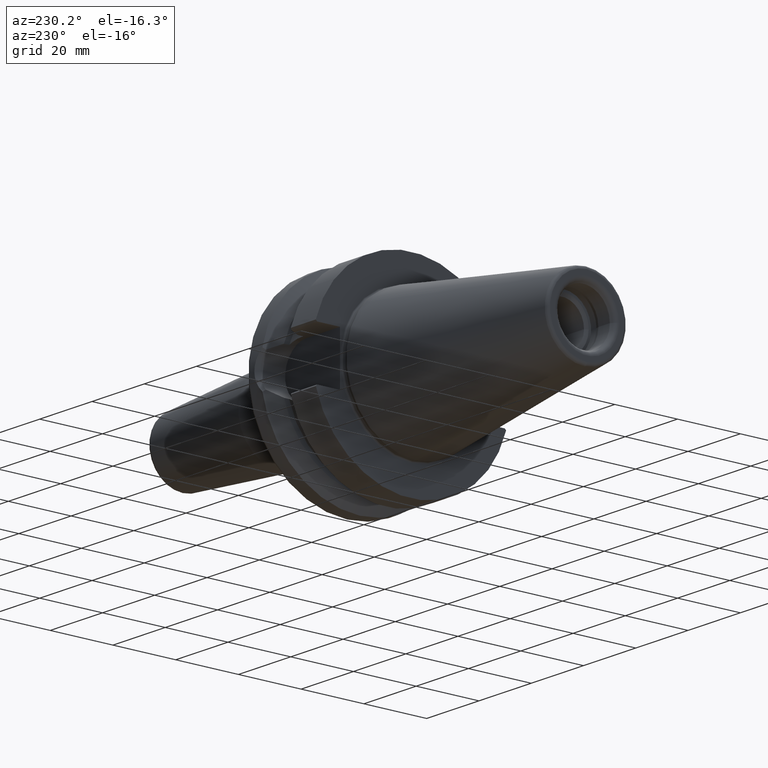
[diagram: clean part render]
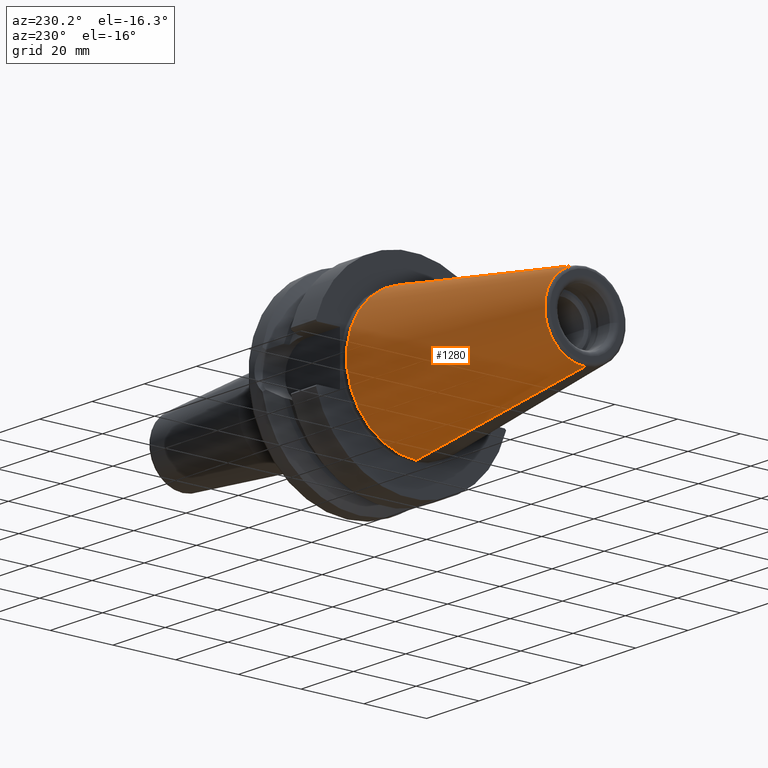
[diagram: same view with one face highlighted and labeled with its STEP entity id]
A machine part, auxiliary view. The second image highlights one B-rep face of the part: STEP entity #1280.
In plain terms, the highlighted conical surface has half-angle 8.297 deg.
Its self-contained STEP definition (entity closure, byte-faithful):
#2=CARTESIAN_POINT('',(0.E0,0.E0,0.E0));
#3=DIRECTION('',(1.E0,0.E0,0.E0));
#4=DIRECTION('',(0.E0,0.E0,-1.E0));
#5=AXIS2_PLACEMENT_3D('',#2,#3,#4);
#7=CARTESIAN_POINT('',(-6.454430688323E1,0.E0,0.E0));
#8=DIRECTION('',(-1.E0,0.E0,0.E0));
#9=DIRECTION('',(0.E0,0.E0,1.E0));
#10=AXIS2_PLACEMENT_3D('',#7,#8,#9);
#25=DIRECTION('',(-9.895329824990E-1,-2.390662347400E-10,1.443068832268E-1));
#26=VECTOR('',#25,6.522703944722E1);
#27=CARTESIAN_POINT('',(5.606857200746E-10,1.565092715213E-8,
-2.222499999985E1));
#28=LINE('',#27,#26);
#34=DIRECTION('',(-9.895329824990E-1,2.390660335631E-10,-1.443068832268E-1));
#35=VECTOR('',#34,6.522703944722E1);
#36=CARTESIAN_POINT('',(5.606857200746E-10,-1.565091853005E-8,
2.222499999985E1));
#37=LINE('',#36,#35);
#1086=CARTESIAN_POINT('',(-6.454430688323E1,0.E0,1.281228923511E1));
#1087=CARTESIAN_POINT('',(-6.454430688323E1,0.E0,-1.281228923511E1));
#1088=VERTEX_POINT('',#1086);
#1089=VERTEX_POINT('',#1087);
#1090=CARTESIAN_POINT('',(4.547473508865E-13,0.E0,2.2225E1));
#1091=CARTESIAN_POINT('',(4.547473508865E-13,0.E0,-2.2225E1));
#1092=VERTEX_POINT('',#1090);
#1093=VERTEX_POINT('',#1091);
#1265=CARTESIAN_POINT('',(-3.227215344162E1,0.E0,0.E0));
#1266=DIRECTION('',(1.E0,0.E0,0.E0));
#1267=DIRECTION('',(0.E0,0.E0,1.E0));
#1268=AXIS2_PLACEMENT_3D('',#1265,#1266,#1267);
#1269=CONICAL_SURFACE('',#1268,1.751864461755E1,8.2971444E0);
#1271=ORIENTED_EDGE('',*,*,#1270,.T.);
#1273=ORIENTED_EDGE('',*,*,#1272,.T.);
#1275=ORIENTED_EDGE('',*,*,#1274,.T.);
#1277=ORIENTED_EDGE('',*,*,#1276,.F.);
#1278=EDGE_LOOP('',(#1271,#1273,#1275,#1277));
#1279=FACE_OUTER_BOUND('',#1278,.F.);
#1280=ADVANCED_FACE('',(#1279),#1269,.T.);
#6=CIRCLE('',#5,2.2225E1);
#11=CIRCLE('',#10,1.281228923511E1);
#1270=EDGE_CURVE('',#1093,#1092,#6,.T.);
#1272=EDGE_CURVE('',#1092,#1088,#37,.T.);
#1274=EDGE_CURVE('',#1088,#1089,#11,.T.);
#1276=EDGE_CURVE('',#1093,#1089,#28,.T.);